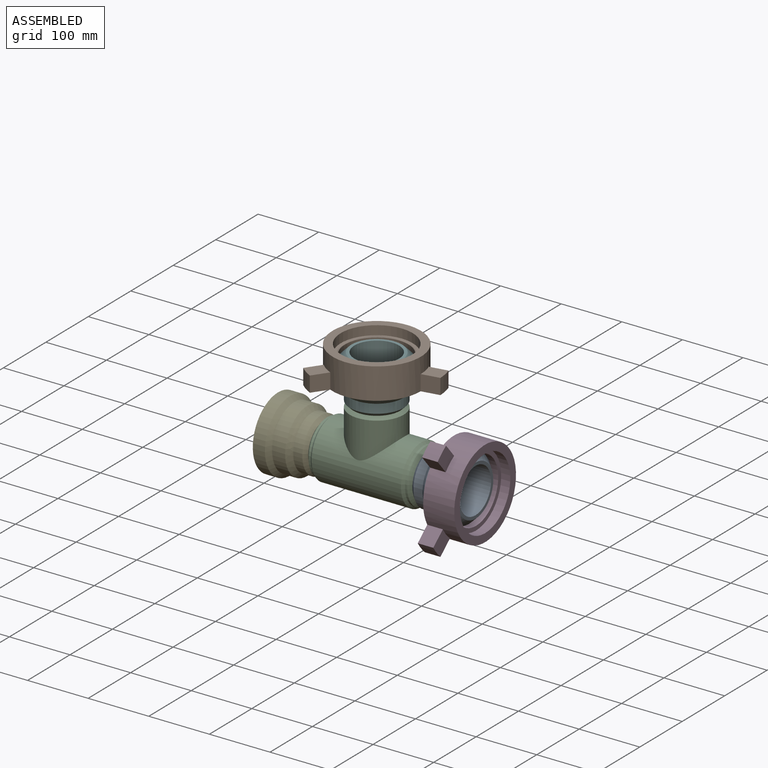
[diagram: assembled view]
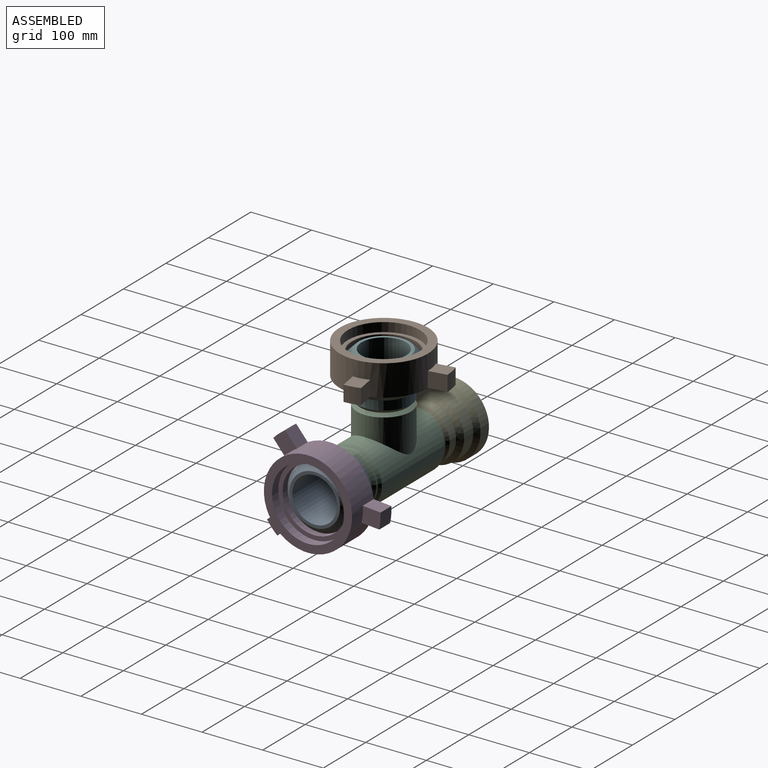
[diagram: assembled view, second angle]
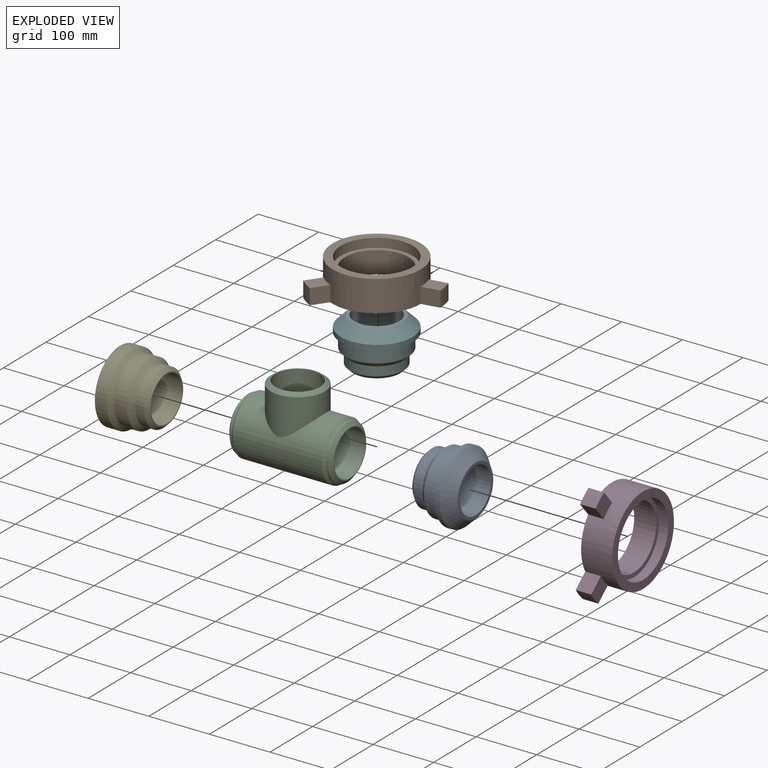
[diagram: exploded view]
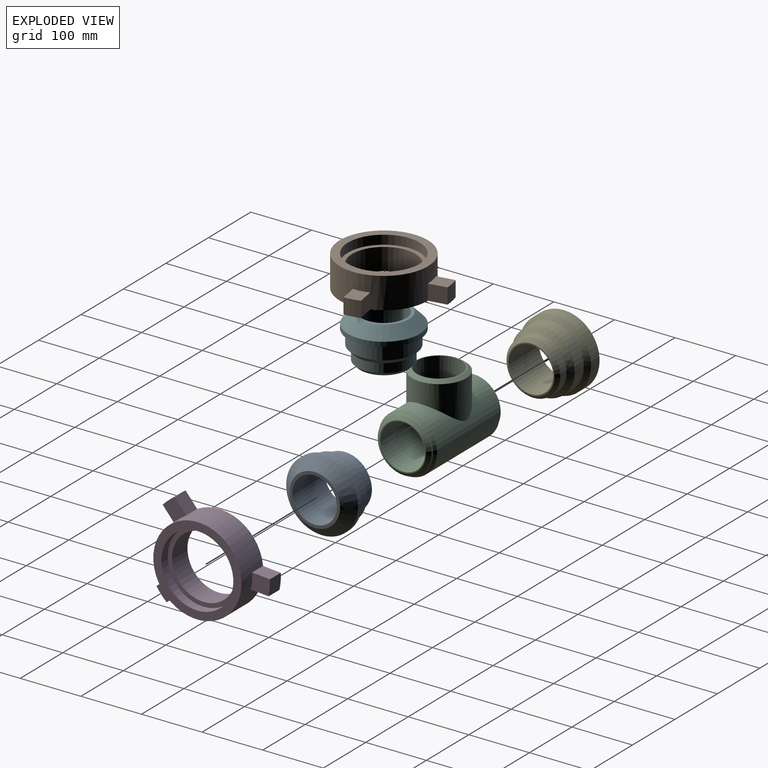
[diagram: exploded view, second angle]
ASSEMBLY  parts=6 mates=5
PART A: 10 faces, bbox 118.6x118.6x77 mm
  f0: cylinder r=36.83mm len=76.96mm, axis (0,0,1), area 17809.8mm2, adj f1,f9
  f1: plane 77.66x77.66mm, normal (0,0,1), area 475.4mm2, adj f0,f2
  f2: cone r=38.83mm half-angle=45deg, axis (0,0,-1), area 2079.4mm2, adj f1,f3
  f3: cylinder r=44.45mm len=88.9mm, axis (0,0,1), area 4189.3mm2, adj f2,f4
  f4: cone r=44.45mm half-angle=45deg, axis (0,0,-1), area 3385.5mm2, adj f3,f5
  f5: cylinder r=52.32mm len=104.65mm, axis (0,0,1), area 7579.5mm2, adj f4,f6
  f6: plane 118.65x118.65mm, normal (0,0,1), area 2455.3mm2, adj f5,f7
  f7: cylinder r=59.32mm len=118.65mm, axis (0,0,1), area 2951.9mm2, adj f6,f8
  f8: cone r=59.32mm half-angle=45deg, axis (0,0,1), area 7862.1mm2, adj f7,f9
  f9: plane 83.66x83.66mm, normal (0,0,-1), area 1235.6mm2, adj f0,f8
PART B: 18 faces, bbox 161.3x51.3x182.5 mm
  f0: cylinder r=52.32mm len=104.65mm, axis (0,-1,0), area 11936.7mm2, adj f4,f16
  f1: plane 145.51x145.51mm, normal (0,1,0), area 5572.1mm2, adj f11,f17
  f2: cylinder r=101.85mm len=26.01mm, axis (0,1,0), area 669mm2, adj f4,f7,f10,f14
  f3: cylinder r=101.85mm len=25.65mm, axis (0,1,0), area 669mm2, adj f4,f9,f12,f13
  f4: plane 182.48x161.25mm, normal (0,-1,0), area 10306.5mm2, adj f0,f2,f3,f5,f6,f7,f8,f9
  f5: cylinder r=101.85mm len=25.65mm, axis (0,1,0), area 669mm2, adj f4,f6,f8,f15
  f6: plane 25.65x20.82mm, normal (-0.71,0,0.71), area 755.2mm2, adj f4,f5,f11,f15
  f7: plane 29.44x25.65mm, normal (-1,0,0), area 755.2mm2, adj f2,f4,f11,f14
  f8: plane 25.65x20.82mm, normal (0.71,0,-0.71), area 755.2mm2, adj f4,f5,f11,f15
  f9: plane 25.65x20.82mm, normal (-0.71,0,-0.71), area 755.2mm2, adj f3,f4,f11,f13
  f10: plane 29.44x25.65mm, normal (1,0,0), area 755.2mm2, adj f2,f4,f11,f14
  f11: cylinder r=72.75mm len=145.51mm, axis (0,-1,0), area 21441.6mm2, adj f1,f4,f6,f7,f8,f9,f10,f12
  f12: plane 25.65x20.82mm, normal (0.71,0,0.71), area 755.2mm2, adj f3,f4,f11,f13
  f13: plane 39.21x39.21mm, normal (0,1,0), area 759.7mm2, adj f3,f9,f11,f12
  f14: plane 30.27x26.01mm, normal (0,1,0), area 759.7mm2, adj f2,f7,f10,f11
  f15: plane 39.21x39.21mm, normal (0,1,0), area 759.7mm2, adj f5,f6,f8,f11
  f16: plane 118.65x118.65mm, normal (0,1,0), area 2455.3mm2, adj f0,f17
  f17: cylinder r=59.32mm len=118.65mm, axis (0,1,0), area 5591.2mm2, adj f1,f16
PART C: 14 faces, bbox 172x96.6x134.3 mm
  f0: plane 76.96x76.96mm, normal (1,0,0), area 378.8mm2, adj f1,f10
  f1: cone r=0mm half-angle=52.5deg, axis (-1,0,0), area 1978.1mm2, adj f0,f2
  f2: cylinder r=44.5mm len=89mm, axis (1,0,0), area 1052.1mm2, adj f1,f3
  f3: cone r=0mm half-angle=45deg, axis (-1,0,0), area 1571mm2, adj f2,f4
  f4: cylinder r=48.31mm len=147.62mm, axis (1,0,0), area 37489.4mm2, adj f3,f5,f6
  f5: cylinder r=44.5mm len=89mm, axis (0,0,1), area 12912mm2, adj f4,f13
  f6: cone r=0mm half-angle=45deg, axis (1,0,0), area 1571mm2, adj f4,f7
  f7: cylinder r=44.5mm len=89mm, axis (1,0,0), area 1052.1mm2, adj f6,f8
  f8: cone r=0mm half-angle=52.5deg, axis (1,0,0), area 1978.1mm2, adj f7,f9
  f9: plane 76.96x76.96mm, normal (-1,0,0), area 378.8mm2, adj f8,f10
  f10: cylinder r=36.88mm len=172mm, axis (1,0,0), area 34416mm2, adj f0,f9,f11
  f11: cylinder r=36.88mm len=86mm, axis (0,0,1), area 14487.7mm2, adj f10,f12
  f12: plane 76.96x76.96mm, normal (0,0,1), area 378.8mm2, adj f11,f13
  f13: cone r=0mm half-angle=52.5deg, axis (0,0,-1), area 1978.1mm2, adj f5,f12
PART D: same geometry as B
PART E: 11 faces, bbox 118.6x118.6x77 mm
  f0: cylinder r=36.83mm len=73.66mm, axis (0,0,1), area 16652.7mm2, adj f1,f10
  f1: plane 77.66x77.66mm, normal (0,0,1), area 475.4mm2, adj f0,f2
  f2: cone r=38.83mm half-angle=45deg, axis (0,0,-1), area 2079.4mm2, adj f1,f3
  f3: cylinder r=44.45mm len=88.9mm, axis (0,0,1), area 4189.3mm2, adj f2,f4
  f4: cone r=44.45mm half-angle=45deg, axis (0,0,-1), area 3385.5mm2, adj f3,f5
  f5: cylinder r=52.32mm len=104.65mm, axis (0,0,1), area 7057.8mm2, adj f4,f6
  f6: cone r=52.32mm half-angle=45deg, axis (0,0,-1), area 3472.3mm2, adj f5,f7
  f7: cylinder r=59.32mm len=118.65mm, axis (0,0,1), area 7454.9mm2, adj f6,f8
  f8: plane 118.65x118.65mm, normal (0,0,-1), area 3413.3mm2, adj f7,f9
  f9: cylinder r=49.32mm len=98.65mm, axis (0,0,1), area 1549.6mm2, adj f8,f10
  f10: plane 98.65x98.65mm, normal (0,0,-1), area 3381.6mm2, adj f0,f9
PART F: same geometry as A
PLACE A rot(axis=(0.71,0,-0.71),180deg) t=(210.48,0,0)mm
PLACE B rot(axis=(0.91,-0.29,-0.29),95.2deg) t=(86,0,175.43)mm
PLACE C t=(86,0,0)mm
PLACE D rot(axis=(-0.59,-0.59,-0.55),122.8deg) t=(264.82,0,0)mm
PLACE E rot(axis=(0.71,0,0.71),180deg) t=(-35.98,0,0)mm
PLACE F rot(axis=(1,0,0),180deg) t=(86,0,124.48)mm
MATE cylindrical A.f0 <-> C.f1  axis (-1,0,0) through (172,0,0)mm
MATE cylindrical B.f2 <-> F.f0  axis (0,0,1) through (86,0,160.43)mm
MATE cylindrical E.f0 <-> C.f8  axis (1,0,0) through (0,0,0)mm
MATE cylindrical F.f0 <-> C.f5  axis (0,0,-1) through (86,0,86)mm
MATE cylindrical D.f2 <-> A.f0  axis (1,0,0) through (249.82,0,0)mm
